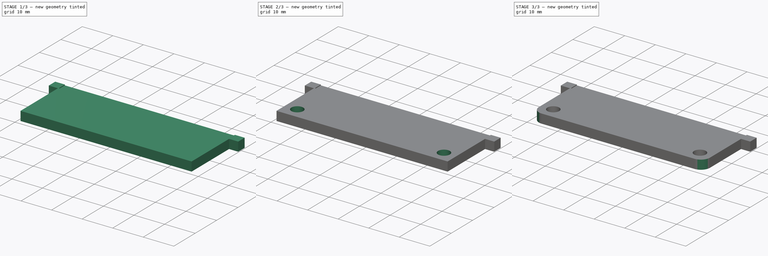
[diagram: build sequence overview — one tinted view per stage of 3, left to right]
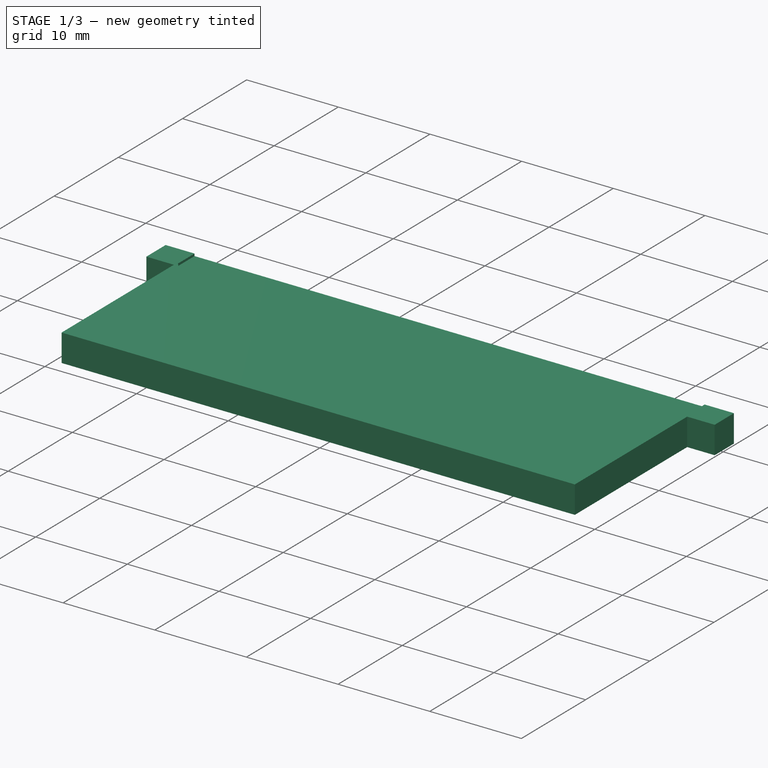
[diagram: stage 1 of 3 — iso view after this stage's code; geometry added in this stage tinted green]
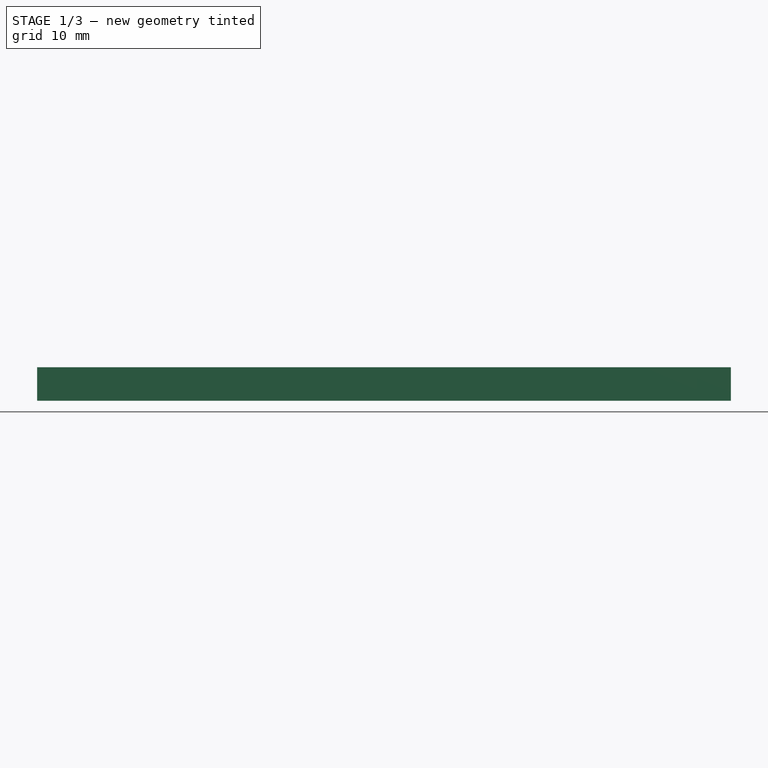
[diagram: stage 1 of 3 — front view after this stage's code; geometry added in this stage tinted green]
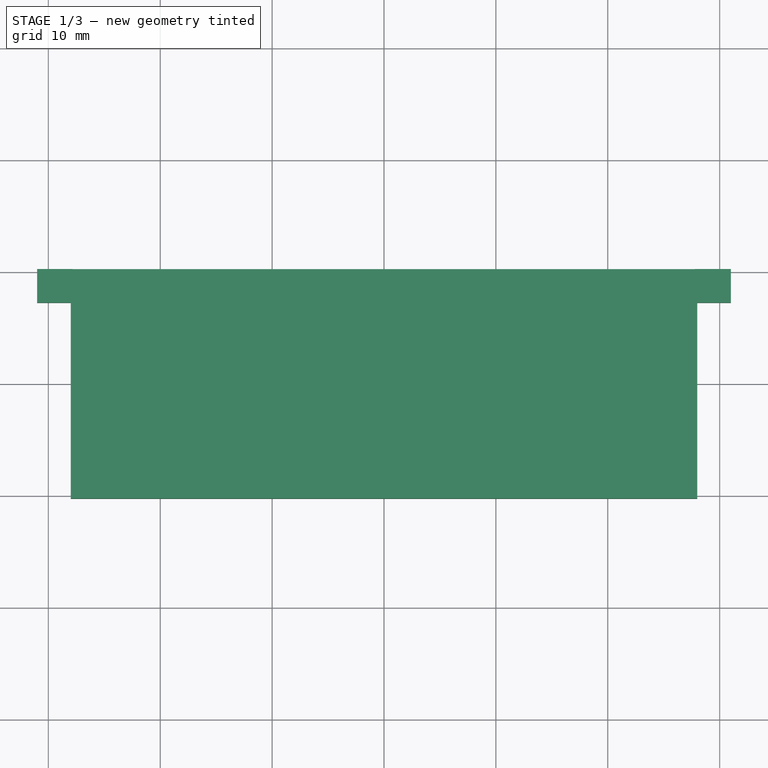
[diagram: stage 1 of 3 — top view after this stage's code; geometry added in this stage tinted green]
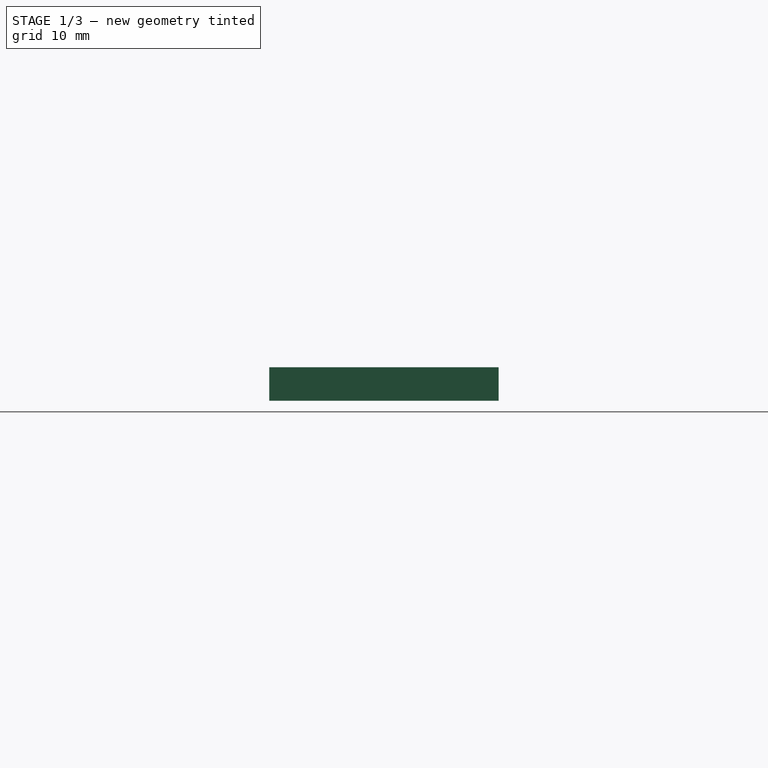
[diagram: stage 1 of 3 — right view after this stage's code; geometry added in this stage tinted green]
FCSTD DOCUMENT  (FreeCAD 1.0R38641 +678 (Git))
Label: Blade Holder Left
License: All rights reserved
LicenseURL: https://en.wikipedia.org/wiki/All_rights_reserved
objects: Sketcher::SketchObject×4, PartDesign::Pocket×2, PartDesign::Fillet×2, PartDesign::Pad×1, PartDesign::Body×1
note: 24 computed .brp shape members not serialized (recipe doc carries the construction recipe); baked Part::Feature solids carry a one-line shape summary decoded from their .brp

FEATURE [Sketcher::SketchObject] Sketch
  ArcFitTolerance = 1e-06
  AttachmentSupport = -> [XY_Plane]
  FullyConstrained = true
  MakeInternals = false
  MapMode = 5
  sketch-geometry (8):
    g0: LineSegment StartX=-31 StartY=10.25 StartZ=0 EndX=31 EndY=10.25 EndZ=0
    g1: LineSegment StartX=-28 StartY=-10.25 StartZ=0 EndX=28 EndY=-10.25 EndZ=0
    g2: LineSegment StartX=28 StartY=-10.25 StartZ=0 EndX=28 EndY=7.25 EndZ=0
    g3: LineSegment StartX=28 StartY=7.25 StartZ=0 EndX=31 EndY=7.25 EndZ=0
    g4: LineSegment StartX=31 StartY=7.25 StartZ=0 EndX=31 EndY=10.25 EndZ=0
    g5: LineSegment StartX=-31 StartY=10.25 StartZ=0 EndX=-31 EndY=7.25 EndZ=0
    g6: LineSegment StartX=-31 StartY=7.25 StartZ=0 EndX=-28 EndY=7.25 EndZ=0
    g7: LineSegment StartX=-28 StartY=7.25 StartZ=0 EndX=-28 EndY=-10.25 EndZ=0
  constraints (24):
    c: Horizontal(g0)
    c: DistanceX(g0,g0) = 62
    c: Horizontal(g1)
    c: Coincident(g2,g1)
    c: Vertical(g2)
    c: Coincident(g3,g2)
    c: Horizontal(g3)
    c: Coincident(g4,g3)
    c: Coincident(g4,g0)
    c: Vertical(g4)
    c: Coincident(g5,g0)
    c: Vertical(g5)
    c: Coincident(g6,g5)
    c: Horizontal(g6)
    c: Coincident(g7,g1)
    c: Vertical(g7)
    c: DistanceY(g5,g5) = 3
    c: DistanceY(g4,g4) = 3
    c: Coincident(g6,g7)
    c: DistanceX(g6,g6) = 3
    c: DistanceX(g3,g3) = 3
    c: DistanceY(g2,g2) = 17.5
    c: DistanceX(g-1,g0) = 31
    c: DistanceY(g1,g-1) = 10.25
FEATURE [PartDesign::Pad] Pad
  Direction = (0,0,1)
  Length = 3
  Length2 = 10
  Profile = -> Sketch
  ReferenceAxis = -> Sketch [N_Axis]
  Refine = true
  Suppressed = false
  Type = 0
FEATURE [Sketcher::SketchObject] Sketch001
  ArcFitTolerance = 1e-06
  AttachmentSupport = -> [Pad]
  ExternalGeometry = -> [Pad]
  FullyConstrained = true
  MakeInternals = false
  MapMode = 5
  Placement = pos=(0,0,3) rot=(0,0,1;0rad)
  sketch-geometry (6):
    g0: LineSegment StartX=-16 StartY=-6.75 StartZ=0 EndX=16 EndY=-6.75 EndZ=0
    g1: LineSegment StartX=27.81 StartY=11.87 StartZ=0 EndX=27.81 EndY=7.67 EndZ=0
    g2: LineSegment StartX=-27.85 StartY=11.87 StartZ=0 EndX=-27.85 EndY=7.67 EndZ=0
    g3: LineSegment StartX=-27.85 StartY=7.67 StartZ=0 EndX=-16 EndY=-6.75 EndZ=0
    g4: LineSegment StartX=16 StartY=-6.75 StartZ=0 EndX=27.81 EndY=7.67 EndZ=0
    g5: LineSegment StartX=-27.85 StartY=11.87 StartZ=0 EndX=27.81 EndY=11.87 EndZ=0
  constraints (19):
    c: Horizontal(g0)
    c: Vertical(g1)
    c: Vertical(g2)
    c: Coincident(g3,g2)
    c: Coincident(g3,g0)
    c: Coincident(g4,g0)
    c: Coincident(g4,g1)
    c: Coincident(g5,g2)
    c: Coincident(g5,g1)
    c: Horizontal(g5)
    c: DistanceX(g5,g5) = 55.66
    c: DistanceX(g0,g0) = 32
    c: DistanceY(g0,g1) = 18.62
    c: DistanceY(g-3,g0) = 3.5
    c: DistanceX(g-4,g2) = 3.15
    c: DistanceY(g2,g2) = 4.2
    c: DistanceY(g1,g1) = 4.2
    c: DistanceX(g-3,g-3) = 56
    c: DistanceX(g-3,g0) = 12
FEATURE [PartDesign::Pocket] Pocket
  BaseFeature = -> Pad
  Direction = (0,0,-1)
  Length = 0.25
  Length2 = 5
  Profile = -> Sketch001
  ReferenceAxis = -> Sketch001 [N_Axis]
  Refine = true
  Suppressed = false
  Type = 0
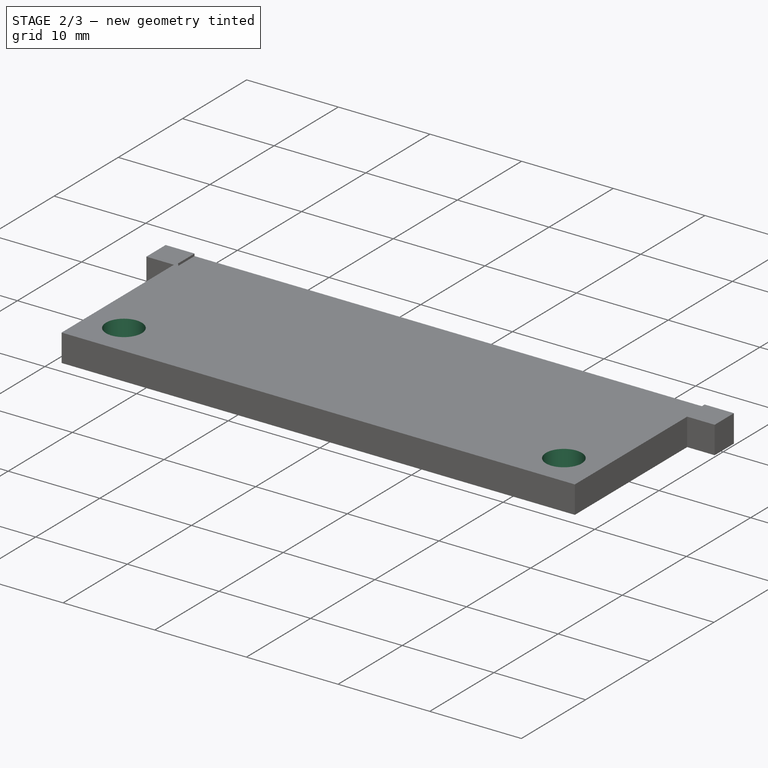
[diagram: stage 2 of 3 — iso view after this stage's code; geometry added in this stage tinted green]
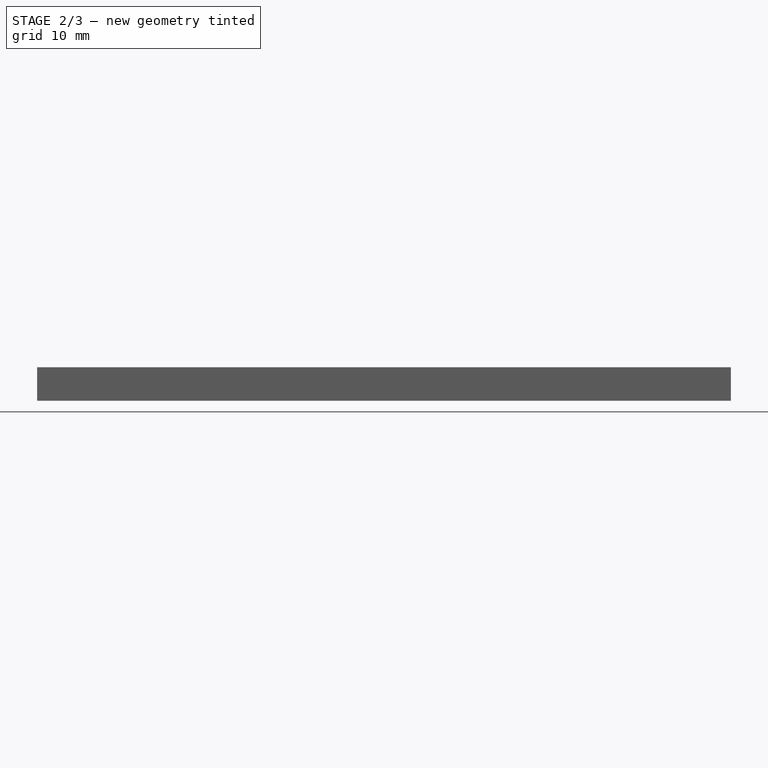
[diagram: stage 2 of 3 — front view after this stage's code; geometry added in this stage tinted green]
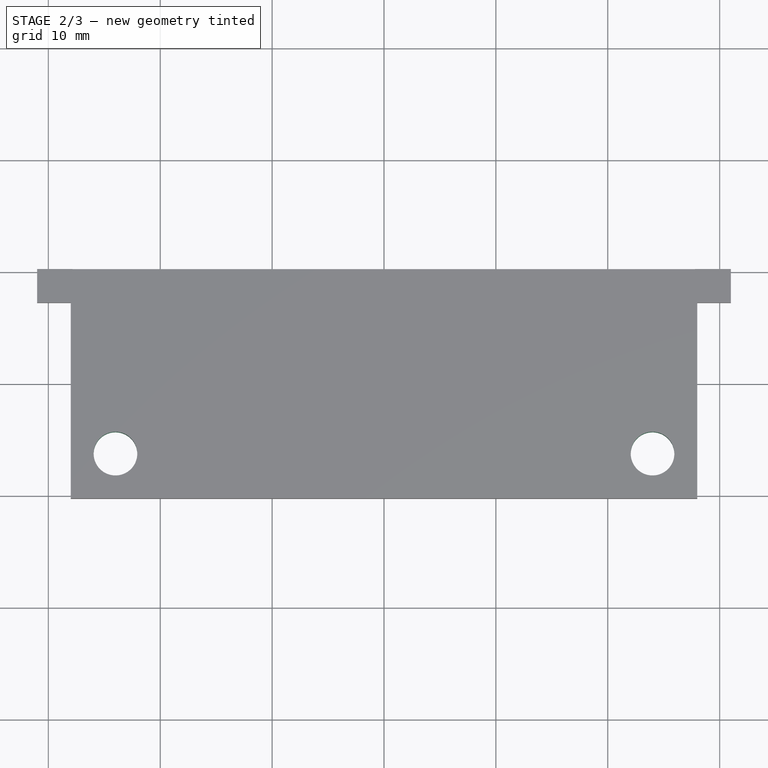
[diagram: stage 2 of 3 — top view after this stage's code; geometry added in this stage tinted green]
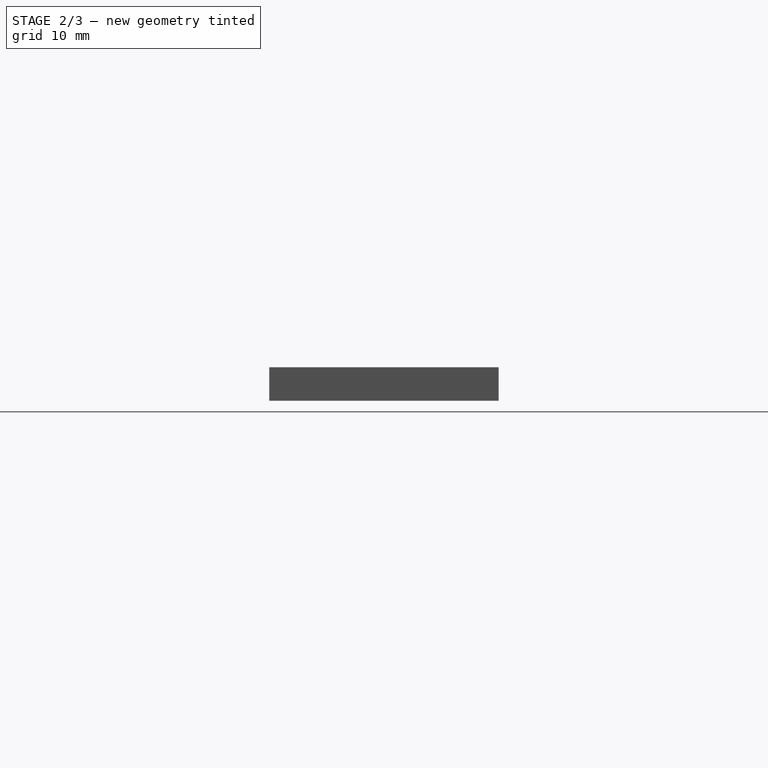
[diagram: stage 2 of 3 — right view after this stage's code; geometry added in this stage tinted green]
FEATURE [Sketcher::SketchObject] Sketch002
  ArcFitTolerance = 1e-06
  AttachmentSupport = -> [Pocket]
  FullyConstrained = true
  MakeInternals = false
  MapMode = 5
  Placement = pos=(0,0,3) rot=(0,0,1;0rad)
FEATURE [Sketcher::SketchObject] Sketch003
  ArcFitTolerance = 1e-06
  AttachmentSupport = -> [Pocket]
  ExternalGeometry = -> [Pocket]
  FullyConstrained = true
  MakeInternals = false
  MapMode = 5
  Placement = pos=(0,0,3) rot=(0,0,1;0rad)
  sketch-geometry (2):
    g0: Circle CenterX=24 CenterY=-6.25 CenterZ=0 NormalX=0 NormalY=0 NormalZ=1 AngleXU=0 Radius=1.95
    g1: Circle CenterX=-24 CenterY=-6.25 CenterZ=0 NormalX=0 NormalY=0 NormalZ=1 AngleXU=0 Radius=1.95
  constraints (6):
    c: DistanceX(g0,g-3) = 4
    c: DistanceY(g-3,g0) = 4
    c: DistanceX(g-3,g1) = 4
    c: DistanceY(g-3,g1) = 4
    c: Diameter(g0) = 3.9
    c: Diameter(g1) = 3.9
FEATURE [PartDesign::Pocket] Pocket001
  BaseFeature = -> Pocket
  Direction = (0,0,-1)
  Length = 3
  Length2 = 5
  Profile = -> Sketch003
  ReferenceAxis = -> Sketch003 [N_Axis]
  Refine = true
  Suppressed = false
  Type = 0
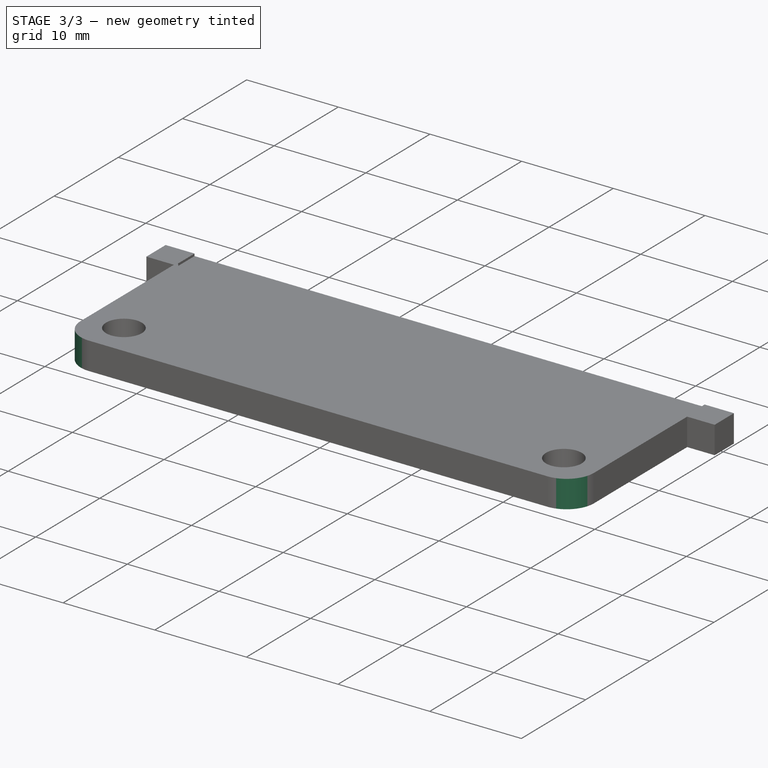
[diagram: stage 3 of 3 — iso view after this stage's code; geometry added in this stage tinted green]
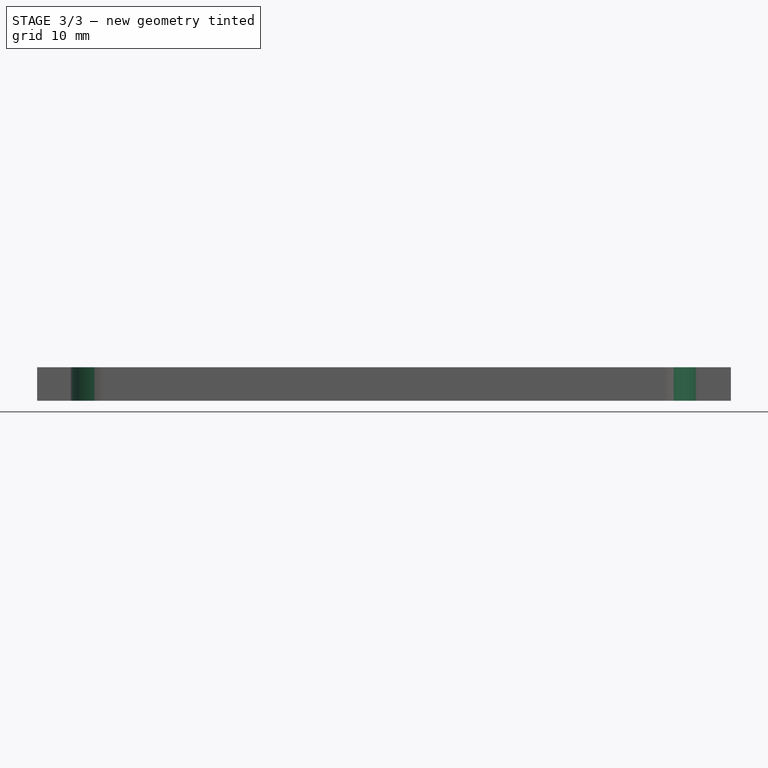
[diagram: stage 3 of 3 — front view after this stage's code; geometry added in this stage tinted green]
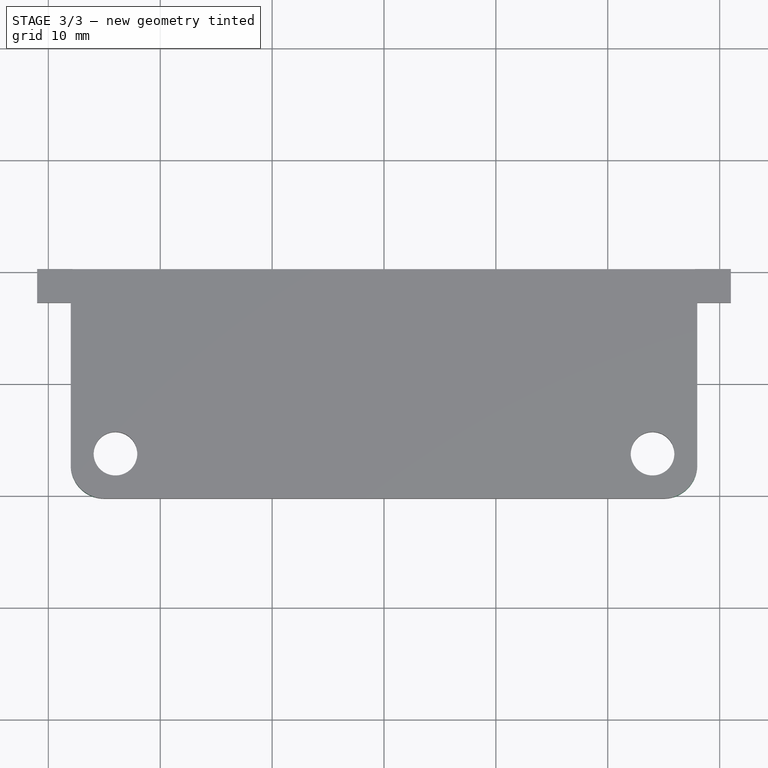
[diagram: stage 3 of 3 — top view after this stage's code; geometry added in this stage tinted green]
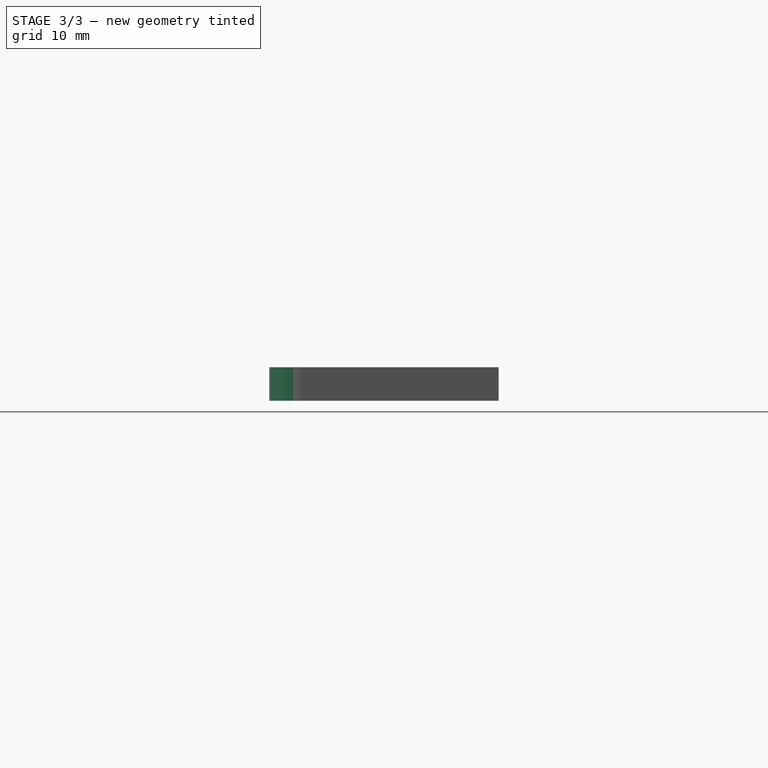
[diagram: stage 3 of 3 — right view after this stage's code; geometry added in this stage tinted green]
FEATURE [PartDesign::Fillet] Fillet
  Base = -> Pocket001 [Edge44]
  BaseFeature = -> Pocket001
  Radius = 3
  Refine = true
  SupportTransform = false
  Suppressed = false
  UseAllEdges = false
FEATURE [PartDesign::Fillet] Fillet001
  Base = -> Fillet [Edge19]
  BaseFeature = -> Fillet
  Radius = 3
  Refine = true
  SupportTransform = false
  Suppressed = false
  UseAllEdges = false
FEATURE [PartDesign::Body] Body
  AllowCompound = false
  Group = -> [Sketch,Pad,Sketch001,Pocket,Sketch002,Sketch003,Pocket001,Fillet,Fillet001]
  Origin = -> Origin
  Tip = -> Fillet001
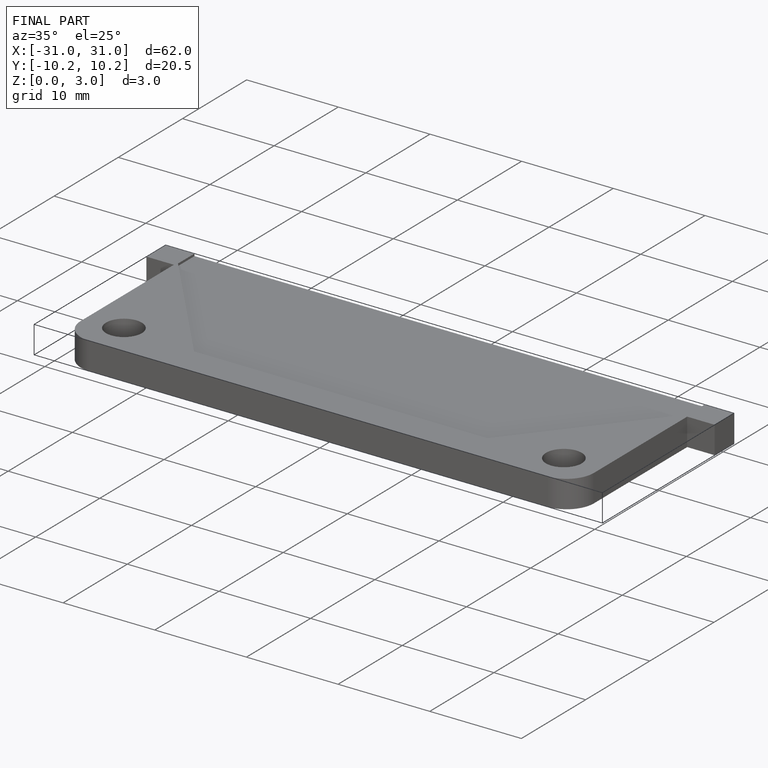
[diagram: finished part — iso view with bounding-box wireframe]
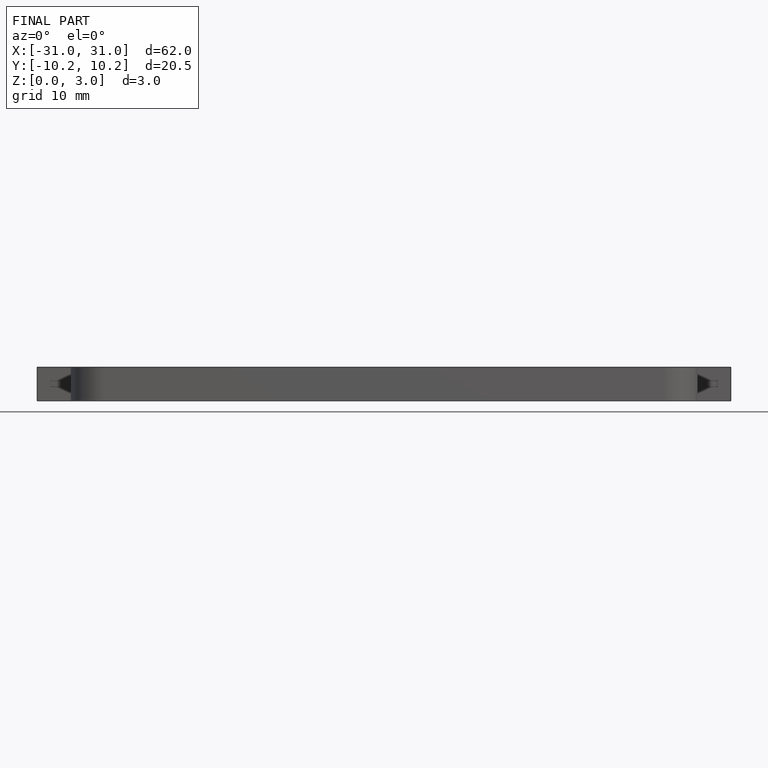
[diagram: finished part — front view with bounding-box wireframe]
